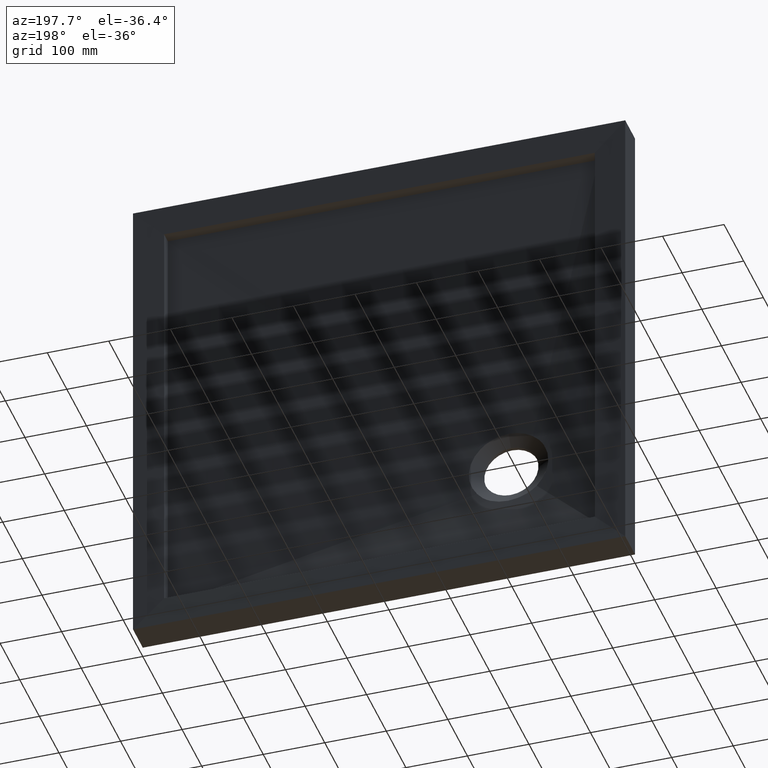
[diagram: clean part render]
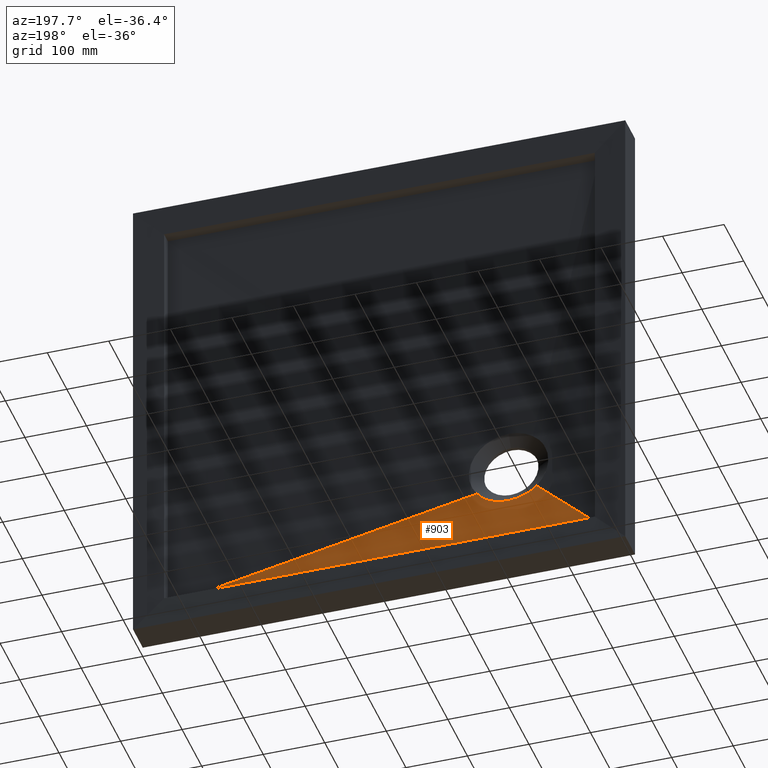
[diagram: same view with one face highlighted and labeled with its STEP entity id]
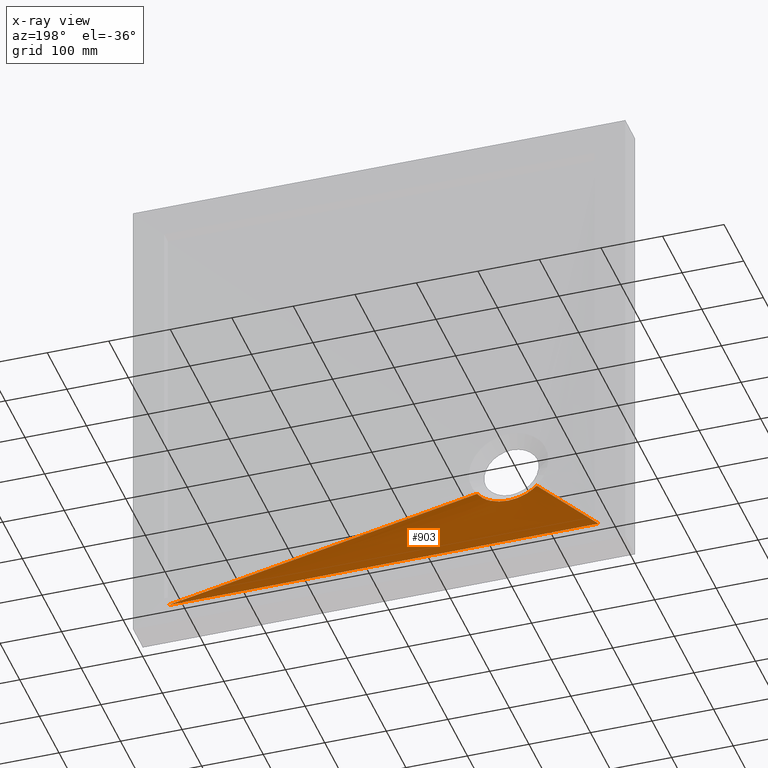
[diagram: x-ray of the same camera — body ghosted, the highlighted face saturated]
A machine part, auxiliary view. The second image highlights one B-rep face of the part: STEP entity #903.
The next image is the same camera in x-ray: the body ghosted, the highlighted face saturated — about 0% of this face is hidden behind the body in this view.
In plain terms, the highlighted face is a freeform B-spline surface patch.
Its self-contained STEP definition (entity closure, byte-faithful):
#8 = CARTESIAN_POINT ( 'NONE',  ( -192.9591620613797100, 17.00000000000000000, -250.6316215631953500 ) ) ;
#16 = CARTESIAN_POINT ( 'NONE',  ( -158.1062934945999000, 17.54700538379253100, -249.6982631008306200 ) ) ;
#21 = CARTESIAN_POINT ( 'NONE',  ( -216.8233817112756300, 18.93317700516531900, -262.8209756188526300 ) ) ;
#27 = CARTESIAN_POINT ( 'NONE',  ( -196.4791847198288200, 17.00000000000000400, -251.0000000000000600 ) ) ;
#28 = VECTOR ( 'NONE', #382, 1000.000000000000000 ) ;
#34 = CARTESIAN_POINT ( 'NONE',  ( -165.7616921374960000, 17.75794391355332600, -255.2842640191877600 ) ) ;
#36 = EDGE_CURVE ( 'NONE', #440, #200, #183, .T. ) ;
#39 = CARTESIAN_POINT ( 'NONE',  ( -170.7357930390343800, 17.93522411388443100, -258.0707420221351600 ) ) ;
#48 = CARTESIAN_POINT ( 'NONE',  ( 116.6666666666665900, 28.99999999999991500, -349.9999999999999400 ) ) ;
#50 = CARTESIAN_POINT ( 'NONE',  ( -350.0000000000001700, 29.00000000000000000, -349.9999999999999400 ) ) ;
#54 = EDGE_LOOP ( 'NONE', ( #823, #126, #702, #312, #951, #955 ) ) ;
#61 = CARTESIAN_POINT ( 'NONE',  ( 58.33333333333320800, 29.00000000000000400, -349.9999999999999400 ) ) ;
#68 = CARTESIAN_POINT ( 'NONE',  ( -237.8447762608912500, 18.37244308401928400, -252.8890250231125100 ) ) ;
#90 = CARTESIAN_POINT ( 'NONE',  ( -222.8866448416327400, 18.82899752274117200, -260.8468437949237600 ) ) ;
#92 = CARTESIAN_POINT ( 'NONE',  ( -350.0000000000001700, 29.00000000000000000, -349.9999999999999400 ) ) ;
#97 = CARTESIAN_POINT ( 'NONE',  ( -200.0000000000000900, 18.91342227402616100, -264.9999999999998900 ) ) ;
#108 = B_SPLINE_SURFACE_WITH_KNOTS ( 'NONE', 3, 1, ( 
 ( #92, #254 ),
 ( #136, #135 ),
 ( #132, #157 ),
 ( #149, #145 ),
 ( #168, #159 ),
 ( #185, #176 ),
 ( #327, #399 ),
 ( #404, #223 ),
 ( #409, #250 ),
 ( #262, #27 ),
 ( #61, #8 ),
 ( #217, #363 ),
 ( #366, #369 ),
 ( #396, #380 ),
 ( #379, #378 ),
 ( #373, #347 ),
 ( #331, #302 ),
 ( #305, #284 ) ),
 .UNSPECIFIED., .F., .F., .F.,
 ( 4, 2, 2, 2, 2, 2, 2, 2, 4 ),
 ( 2, 2 ),
 ( 0.0000000000000000000, 0.1250000000000000000, 0.2500000000000000000, 0.3750000000000000000, 0.5000000000000000000, 0.6250000000000000000, 0.7500000000000000000, 0.8750000000000000000, 1.000000000000000000 ),
 ( 0.0000000000000000000, 1.000000000000000000 ),
 .UNSPECIFIED. ) ;
#110 = CARTESIAN_POINT ( 'NONE',  ( -169.0501230583342900, 17.87166609072889400, -257.1901800200576500 ) ) ;
#113 = CARTESIAN_POINT ( 'NONE',  ( -200.0000000000000900, 18.91342227402616100, -264.9999999999998900 ) ) ;
#126 = ORIENTED_EDGE ( 'NONE', *, *, #196, .F. ) ;
#132 = CARTESIAN_POINT ( 'NONE',  ( -291.6666666666668000, 29.00000000000000000, -349.9999999999999400 ) ) ;
#135 = CARTESIAN_POINT ( 'NONE',  ( -233.9374458405141600, 17.00000000000000000, -238.1874458405139600 ) ) ;
#136 = CARTESIAN_POINT ( 'NONE',  ( -320.8333333333334800, 29.00000000000000000, -349.9999999999999400 ) ) ;
#145 = CARTESIAN_POINT ( 'NONE',  ( -226.2526570011330300, 16.99999999999999300, -243.8418529201517200 ) ) ;
#149 = CARTESIAN_POINT ( 'NONE',  ( -233.3333333333334600, 29.00000000000000000, -349.9999999999999400 ) ) ;
#156 = EDGE_CURVE ( 'NONE', #315, #776, #218, .T. ) ;
#157 = CARTESIAN_POINT ( 'NONE',  ( -231.5440707401107800, 17.00000000000000400, -240.2030057114421600 ) ) ;
#159 = CARTESIAN_POINT ( 'NONE',  ( -223.3543481431895800, 17.00000000000000700, -245.4639620923478000 ) ) ;
#161 = CARTESIAN_POINT ( 'NONE',  ( -245.2038265379108900, 18.07416546558518200, -246.7200550163403000 ) ) ;
#162 = CARTESIAN_POINT ( 'NONE',  ( -159.5602246091525000, 17.58086137383332600, -250.9238705887333900 ) ) ;
#165 = CARTESIAN_POINT ( 'NONE',  ( -210.6219565087925500, 18.98008221843609500, -264.1611105480170600 ) ) ;
#168 = CARTESIAN_POINT ( 'NONE',  ( -204.1666666666668000, 29.00000000000000400, -350.0000000000000000 ) ) ;
#169 = CARTESIAN_POINT ( 'NONE',  ( -228.8321917833252100, 18.68866546995933200, -258.4126524833522500 ) ) ;
#172 = CARTESIAN_POINT ( 'NONE',  ( -150.1299593099688500, 17.37707173766290600, -241.2939544720571000 ) ) ;
#174 = CARTESIAN_POINT ( 'NONE',  ( -196.2103666697105400, 18.84868949856284800, -264.9171654425527400 ) ) ;
#176 = CARTESIAN_POINT ( 'NONE',  ( -217.1577413017160200, 17.00000000000000700, -248.1457094635765400 ) ) ;
#183 = B_SPLINE_CURVE_WITH_KNOTS ( 'NONE', 3,
 ( #50, #977, #48, #190 ),
 .UNSPECIFIED., .F., .F.,
 ( 4, 4 ),
 ( 0.0000000000000000000, 1.000000000000000000 ),
 .UNSPECIFIED. ) ;
#185 = CARTESIAN_POINT ( 'NONE',  ( -145.8333333333334800, 29.00000000000000400, -350.0000000000000000 ) ) ;
#190 = CARTESIAN_POINT ( 'NONE',  ( 349.9999999999999400, 29.00000000000000000, -349.9999999999999400 ) ) ;
#196 = EDGE_CURVE ( 'NONE', #917, #928, #782, .T. ) ;
#200 = VERTEX_POINT ( 'NONE', #384 ) ;
#217 = CARTESIAN_POINT ( 'NONE',  ( 116.6666666666665400, 29.00000000000000400, -349.9999999999999400 ) ) ;
#218 = B_SPLINE_CURVE_WITH_KNOTS ( 'NONE', 3,
 ( #332, #857, #468, #936, #450, #743, #165, #749, #21, #686, #524, #90, #586, #169, #375, #68, #400, #444, #515, #907, #161, #673 ),
 .UNSPECIFIED., .F., .F.,
 ( 4, 2, 2, 2, 2, 2, 2, 2, 2, 2, 4 ),
 ( 0.04548709582801217800, 0.04869391247471226100, 0.05190072912141233800, 0.05831436241481248500, 0.06472799570821263800, 0.06793481235491272100, 0.07114162900161283300, 0.08396889558841333400, 0.09038252888181355600, 0.09358934552851361200, 0.09679616217521366800 ),
 .UNSPECIFIED. ) ;
#223 = CARTESIAN_POINT ( 'NONE',  ( -207.0408379386202900, 17.00000000000000400, -250.6316215631952400 ) ) ;
#230 = CARTESIAN_POINT ( 'NONE',  ( -186.8106316123583500, 18.58188601607705000, -263.6759904073658200 ) ) ;
#248 = CARTESIAN_POINT ( 'NONE',  ( -193.3753247396355400, 18.78051812430111800, -264.6684900099202800 ) ) ;
#250 = CARTESIAN_POINT ( 'NONE',  ( -203.5208152801714000, 17.00000000000000000, -251.0000000000000600 ) ) ;
#252 = EDGE_CURVE ( 'NONE', #928, #315, #473, .T. ) ;
#254 = CARTESIAN_POINT ( 'NONE',  ( -236.0624458405141300, 17.00000000000000000, -236.0624458405139600 ) ) ;
#262 = CARTESIAN_POINT ( 'NONE',  ( 29.16666666666654000, 29.00000000000000400, -350.0000000000000000 ) ) ;
#265 = CARTESIAN_POINT ( 'NONE',  ( -178.5937321401935900, 18.25756674695699300, -261.3813381594257000 ) ) ;
#284 = CARTESIAN_POINT ( 'NONE',  ( -163.9375541594860400, 17.00000000000000000, -236.0624458405139600 ) ) ;
#302 = CARTESIAN_POINT ( 'NONE',  ( -166.0625541594860700, 17.00000000000000400, -238.1874458405139600 ) ) ;
#303 = CARTESIAN_POINT ( 'NONE',  ( -174.1752968237665600, 18.07246799648244100, -259.6798927103178000 ) ) ;
#305 = CARTESIAN_POINT ( 'NONE',  ( 349.9999999999999400, 29.00000000000000000, -349.9999999999999400 ) ) ;
#312 = ORIENTED_EDGE ( 'NONE', *, *, #36, .F. ) ;
#314 = LINE ( 'NONE', #931, #28 ) ;
#315 = VERTEX_POINT ( 'NONE', #113 ) ;
#327 = CARTESIAN_POINT ( 'NONE',  ( -116.6666666666668100, 29.00000000000000400, -350.0000000000000000 ) ) ;
#331 = CARTESIAN_POINT ( 'NONE',  ( 320.8333333333333100, 29.00000000000000400, -350.0000000000000000 ) ) ;
#332 = CARTESIAN_POINT ( 'NONE',  ( -200.0000000000000900, 18.91342227402616100, -264.9999999999998900 ) ) ;
#344 = CARTESIAN_POINT ( 'NONE',  ( -350.0000000000001700, 29.00000000000000000, -349.9999999999999400 ) ) ;
#347 = CARTESIAN_POINT ( 'NONE',  ( -168.4559292598893900, 16.99999999999999600, -240.2030057114421300 ) ) ;
#363 = CARTESIAN_POINT ( 'NONE',  ( -186.1400715441738500, 17.00000000000000400, -249.2040332106618900 ) ) ;
#366 = CARTESIAN_POINT ( 'NONE',  ( 145.8333333333332000, 29.00000000000000400, -350.0000000000000000 ) ) ;
#367 = CARTESIAN_POINT ( 'NONE',  ( -184.9614105044462300, 18.51409229684672700, -263.2648487170021700 ) ) ;
#369 = CARTESIAN_POINT ( 'NONE',  ( -182.8422586982842700, 17.00000000000000400, -248.1457094635765900 ) ) ;
#373 = CARTESIAN_POINT ( 'NONE',  ( 291.6666666666666300, 29.00000000000000400, -350.0000000000000000 ) ) ;
#375 = CARTESIAN_POINT ( 'NONE',  ( -232.5656710969481900, 18.56723386946348200, -256.4125987571462100 ) ) ;
#378 = CARTESIAN_POINT ( 'NONE',  ( -173.7473429988670500, 16.99999999999999600, -243.8418529201517500 ) ) ;
#379 = CARTESIAN_POINT ( 'NONE',  ( 233.3333333333332900, 29.00000000000000400, -350.0000000000000000 ) ) ;
#380 = CARTESIAN_POINT ( 'NONE',  ( -176.6456518568107000, 17.00000000000000400, -245.4639620923478000 ) ) ;
#382 = DIRECTION ( 'NONE',  ( -0.7051540081587476200, 0.07426741920456145200, -0.7051540081587474000 ) ) ;
#384 = CARTESIAN_POINT ( 'NONE',  ( 349.9999999999999400, 29.00000000000000000, -349.9999999999999400 ) ) ;
#396 = CARTESIAN_POINT ( 'NONE',  ( 204.1666666666665700, 29.00000000000000400, -350.0000000000000000 ) ) ;
#399 = CARTESIAN_POINT ( 'NONE',  ( -213.8599284558261800, 17.00000000000000000, -249.2040332106618900 ) ) ;
#400 = CARTESIAN_POINT ( 'NONE',  ( -239.5505658408244800, 18.30544119515077000, -251.6266078157675600 ) ) ;
#404 = CARTESIAN_POINT ( 'NONE',  ( -58.33333333333347100, 29.00000000000000400, -350.0000000000000000 ) ) ;
#409 = CARTESIAN_POINT ( 'NONE',  ( -29.16666666666680600, 29.00000000000000400, -350.0000000000000000 ) ) ;
#413 = CARTESIAN_POINT ( 'NONE',  ( -161.0624502241465200, 17.61919905618393400, -252.0812583871850400 ) ) ;
#434 = CARTESIAN_POINT ( 'NONE',  ( -148.7452335887667200, 17.35472762278830700, -239.4305123182896600 ) ) ;
#438 = CARTESIAN_POINT ( 'NONE',  ( -158.1062934945999000, 17.54700538379253100, -249.6982631008306200 ) ) ;
#440 = VERTEX_POINT ( 'NONE', #344 ) ;
#444 = CARTESIAN_POINT ( 'NONE',  ( -242.0263475500364300, 18.20538767795130000, -249.5976268063972700 ) ) ;
#450 = CARTESIAN_POINT ( 'NONE',  ( -205.3473942551803800, 18.96927834209628100, -264.7884147839641900 ) ) ;
#468 = CARTESIAN_POINT ( 'NONE',  ( -202.1409606817767600, 18.94204735438719200, -264.9735756538423200 ) ) ;
#473 = B_SPLINE_CURVE_WITH_KNOTS ( 'NONE', 3,
 ( #634, #162, #413, #558, #34, #110, #39, #303, #797, #265, #795, #821, #707, #367, #230, #919, #575, #775, #248, #174, #615, #97 ),
 .UNSPECIFIED., .F., .F.,
 ( 4, 2, 2, 2, 2, 2, 2, 2, 2, 2, 4 ),
 ( 1.032852667740294100E-015, 0.005685886978502351400, 0.01137177395700366900, 0.01705766093550499200, 0.02274354791400630800, 0.02558649140325701100, 0.02842943489250770700, 0.03411532187100914400, 0.03695826536025990900, 0.03980120884951066800, 0.04548709582801217800 ),
 .UNSPECIFIED. ) ;
#480 = EDGE_CURVE ( 'NONE', #200, #917, #626, .T. ) ;
#487 = DIRECTION ( 'NONE',  ( -0.9760423064386101200, -0.02278974864255332900, 0.2163840183534993200 ) ) ;
#515 = CARTESIAN_POINT ( 'NONE',  ( -242.8390625130674900, 18.17205693948506400, -248.8974750706583700 ) ) ;
#524 = CARTESIAN_POINT ( 'NONE',  ( -220.8786033934042100, 18.86867176017498700, -261.5647694079318100 ) ) ;
#538 = CARTESIAN_POINT ( 'NONE',  ( -151.6063945238022900, 17.40284965561676200, -243.0818776657485500 ) ) ;
#545 = CARTESIAN_POINT ( 'NONE',  ( -156.3829326504871900, 17.50190604108206200, -248.1433716111232900 ) ) ;
#558 = CARTESIAN_POINT ( 'NONE',  ( -164.1624050920808300, 17.70770746834088900, -254.2610085508524400 ) ) ;
#575 = CARTESIAN_POINT ( 'NONE',  ( -190.5469845980989000, 18.70196286764564100, -264.3159575339005900 ) ) ;
#586 = CARTESIAN_POINT ( 'NONE',  ( -223.8875015952833700, 18.80704691513348700, -260.4610047539612800 ) ) ;
#614 = EDGE_CURVE ( 'NONE', #776, #440, #314, .T. ) ;
#615 = CARTESIAN_POINT ( 'NONE',  ( -198.1035862670055100, 18.88553599401820500, -265.0000000000001100 ) ) ;
#626 = LINE ( 'NONE', #874, #681 ) ;
#634 = CARTESIAN_POINT ( 'NONE',  ( -158.1062934945999000, 17.54700538379253100, -249.6982631008306200 ) ) ;
#673 = CARTESIAN_POINT ( 'NONE',  ( -245.9619407771256800, 18.04262321686363900, -245.9619407771255300 ) ) ;
#681 = VECTOR ( 'NONE', #487, 1000.000000000000000 ) ;
#686 = CARTESIAN_POINT ( 'NONE',  ( -219.8689550599993400, 18.88645643818077600, -261.8978990944010500 ) ) ;
#689 = CARTESIAN_POINT ( 'NONE',  ( -154.7366641917503800, 17.46533281921988500, -246.5107133477945400 ) ) ;
#702 = ORIENTED_EDGE ( 'NONE', *, *, #480, .F. ) ;
#707 = CARTESIAN_POINT ( 'NONE',  ( -182.2128003925581100, 18.40638104300904800, -262.5261192976603300 ) ) ;
#743 = CARTESIAN_POINT ( 'NONE',  ( -208.5255613374494600, 18.98240877607262100, -264.4736230255343200 ) ) ;
#749 = CARTESIAN_POINT ( 'NONE',  ( -214.7708672879126100, 18.95547199409266200, -263.3347893846063200 ) ) ;
#755 = FACE_OUTER_BOUND ( 'NONE', #54, .T. ) ;
#775 = CARTESIAN_POINT ( 'NONE',  ( -192.4299917372185300, 18.75562030636763200, -264.5646719854790400 ) ) ;
#776 = VERTEX_POINT ( 'NONE', #818 ) ;
#782 = B_SPLINE_CURVE_WITH_KNOTS ( 'NONE', 3,
 ( #872, #172, #538, #689, #545, #16 ),
 .UNSPECIFIED., .F., .F.,
 ( 4, 2, 4 ),
 ( 0.0000000000000000000, 0.006956294326144373700, 0.01391258865228874700 ),
 .UNSPECIFIED. ) ;
#795 = CARTESIAN_POINT ( 'NONE',  ( -179.4908014640504300, 18.29506662392249400, -261.6868940950868100 ) ) ;
#797 = CARTESIAN_POINT ( 'NONE',  ( -175.9248432561004200, 18.14584766088684700, -260.4067441554909100 ) ) ;
#818 = CARTESIAN_POINT ( 'NONE',  ( -245.9619407771256800, 18.04262321686363900, -245.9619407771255300 ) ) ;
#821 = CARTESIAN_POINT ( 'NONE',  ( -181.2999388336493500, 18.36946500744330600, -262.2591988388879300 ) ) ;
#823 = ORIENTED_EDGE ( 'NONE', *, *, #252, .F. ) ;
#857 = CARTESIAN_POINT ( 'NONE',  ( -201.0695694710416900, 18.92915002016010100, -265.0000000000001100 ) ) ;
#872 = CARTESIAN_POINT ( 'NONE',  ( -148.7452335887667200, 17.35472762278830700, -239.4305123182896600 ) ) ;
#874 = CARTESIAN_POINT ( 'NONE',  ( 93.03122292025693700, 23.00000000000000000, -293.0312229202569400 ) ) ;
#903 = ADVANCED_FACE ( 'NONE', ( #755 ), #108, .F. ) ;
#907 = CARTESIAN_POINT ( 'NONE',  ( -244.4276193674243100, 18.10645193825859400, -247.4587713982086300 ) ) ;
#917 = VERTEX_POINT ( 'NONE', #434 ) ;
#919 = CARTESIAN_POINT ( 'NONE',  ( -189.6097336998120100, 18.67321750536787000, -264.1711786117189700 ) ) ;
#928 = VERTEX_POINT ( 'NONE', #438 ) ;
#931 = CARTESIAN_POINT ( 'NONE',  ( -293.0312229202571100, 23.00000000000000000, -293.0312229202569400 ) ) ;
#936 = CARTESIAN_POINT ( 'NONE',  ( -204.2823995668232400, 18.96213234114079800, -264.8676367677792900 ) ) ;
#951 = ORIENTED_EDGE ( 'NONE', *, *, #614, .F. ) ;
#955 = ORIENTED_EDGE ( 'NONE', *, *, #156, .F. ) ;
#977 = CARTESIAN_POINT ( 'NONE',  ( -116.6666666666668100, 28.99999999999991500, -349.9999999999999400 ) ) ;